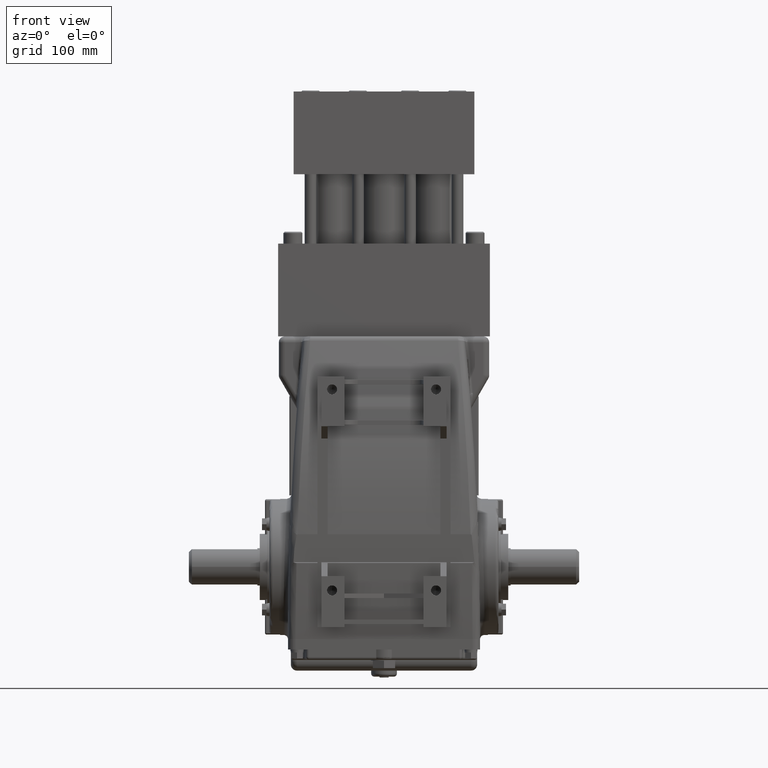
[diagram: clean part render]
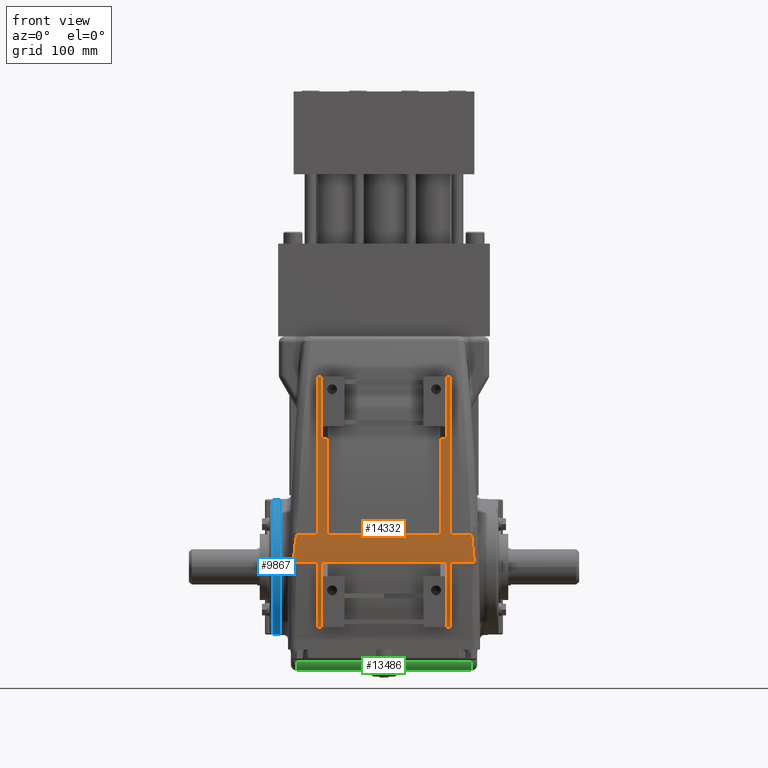
[diagram: same view with three faces highlighted in distinct colors, each labeled with its STEP entity id]
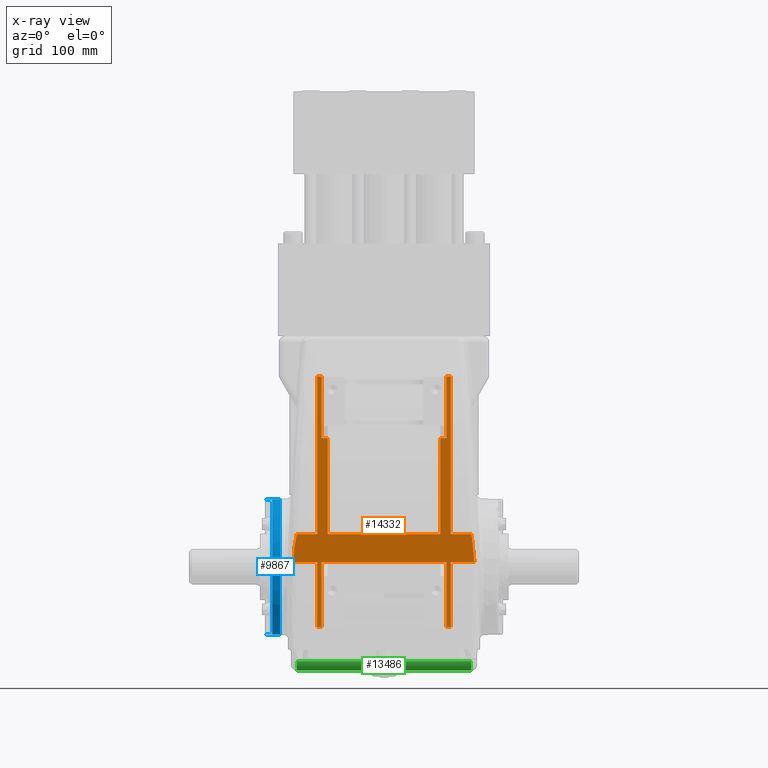
[diagram: x-ray of the same camera — body ghosted, the three highlighted faces saturated]
A machine part, front view with three faces highlighted in distinct colors.
The next image is the same camera in x-ray (body ghosted, the three faces saturated) — at least one of them is partly hidden behind the body in this view.
Their STEP definitions:

[orange] entity #14332 — the highlighted planar face has unit normal (0, -1, 0).
#1866 = DIRECTION ( 'NONE',  ( 1.000000000000000000, -0.0000000000000000000, -0.0000000000000000000 ) ) ;
#1867 = VECTOR ( 'NONE', #1866, 39.37007874015748100 ) ;
#1870 = CARTESIAN_POINT ( 'NONE',  ( -3.499999999999998700, -2.863300000000000200, 4.272365822270510100 ) ) ;
#1871 = LINE ( 'NONE', #1870, #1867 ) ;
#2048 = DIRECTION ( 'NONE',  ( -1.310238845882140600E-016, -0.0000000000000000000, 1.000000000000000000 ) ) ;
#2049 = VECTOR ( 'NONE', #2048, 39.37007874015748100 ) ;
#2050 = CARTESIAN_POINT ( 'NONE',  ( -2.085000000000000000, -2.863300000000000200, 6.330000000000000100 ) ) ;
#2051 = LINE ( 'NONE', #2050, #2049 ) ;
#2053 = CARTESIAN_POINT ( 'NONE',  ( -2.214000000000000400, -2.863299999999999300, 0.1537133837002174800 ) ) ;
#2165 = DIRECTION ( 'NONE',  ( 1.000000000000000000, -0.0000000000000000000, -0.0000000000000000000 ) ) ;
#2166 = VECTOR ( 'NONE', #2165, 39.37007874015748100 ) ;
#2168 = CARTESIAN_POINT ( 'NONE',  ( -3.499999999999998700, -2.863299999999999300, 0.1537133837002174800 ) ) ;
#2169 = LINE ( 'NONE', #2168, #2166 ) ;
#10411 = EDGE_CURVE ( 'NONE', #10797, #10446, #22726, .T. ) ;
#10446 = VERTEX_POINT ( 'NONE', #22689 ) ;
#10706 = EDGE_CURVE ( 'NONE', #10797, #12101, #24592, .T. ) ;
#10717 = VERTEX_POINT ( 'NONE', #25319 ) ;
#10730 = VERTEX_POINT ( 'NONE', #25448 ) ;
#10735 = EDGE_CURVE ( 'NONE', #10730, #10736, #25273, .T. ) ;
#10736 = VERTEX_POINT ( 'NONE', #25289 ) ;
#10797 = VERTEX_POINT ( 'NONE', #25619 ) ;
#11076 = VERTEX_POINT ( 'NONE', #26994 ) ;
#11078 = EDGE_CURVE ( 'NONE', #11080, #11076, #26859, .T. ) ;
#11080 = VERTEX_POINT ( 'NONE', #26855 ) ;
#11095 = VERTEX_POINT ( 'NONE', #26819 ) ;
#11109 = VERTEX_POINT ( 'NONE', #26760 ) ;
#11115 = EDGE_CURVE ( 'NONE', #11117, #10446, #26750, .T. ) ;
#11117 = VERTEX_POINT ( 'NONE', #26743 ) ;
#11137 = VERTEX_POINT ( 'NONE', #26727 ) ;
#11144 = EDGE_CURVE ( 'NONE', #11149, #11109, #26721, .T. ) ;
#11149 = VERTEX_POINT ( 'NONE', #26622 ) ;
#11155 = VERTEX_POINT ( 'NONE', #26611 ) ;
#11162 = EDGE_CURVE ( 'NONE', #11095, #11137, #26934, .T. ) ;
#11193 = EDGE_CURVE ( 'NONE', #11195, #11155, #26685, .T. ) ;
#11195 = VERTEX_POINT ( 'NONE', #26680 ) ;
#11229 = EDGE_CURVE ( 'NONE', #11232, #11195, #27091, .T. ) ;
#11232 = VERTEX_POINT ( 'NONE', #27167 ) ;
#11246 = EDGE_CURVE ( 'NONE', #11076, #11249, #27205, .T. ) ;
#11249 = VERTEX_POINT ( 'NONE', #27116 ) ;
#11281 = EDGE_CURVE ( 'NONE', #12091, #11282, #27149, .T. ) ;
#11282 = VERTEX_POINT ( 'NONE', #27145 ) ;
#11600 = EDGE_CURVE ( 'NONE', #11109, #11603, #28531, .T. ) ;
#11603 = VERTEX_POINT ( 'NONE', #28527 ) ;
#11647 = EDGE_CURVE ( 'NONE', #11282, #11095, #29179, .T. ) ;
#11723 = EDGE_CURVE ( 'NONE', #11603, #10736, #29808, .T. ) ;
#11781 = EDGE_CURVE ( 'NONE', #10730, #11788, #29968, .T. ) ;
#11788 = VERTEX_POINT ( 'NONE', #30566 ) ;
#11799 = EDGE_CURVE ( 'NONE', #11801, #10717, #30556, .T. ) ;
#11801 = VERTEX_POINT ( 'NONE', #30555 ) ;
#12072 = EDGE_CURVE ( 'NONE', #12091, #10717, #34753, .T. ) ;
#12091 = VERTEX_POINT ( 'NONE', #34734 ) ;
#12101 = VERTEX_POINT ( 'NONE', #33412 ) ;
#13902 = EDGE_CURVE ( 'NONE', #13930, #11080, #34585, .T. ) ;
#13930 = VERTEX_POINT ( 'NONE', #34581 ) ;
#14224 = EDGE_CURVE ( 'NONE', #14245, #11801, #34494, .T. ) ;
#14229 = ORIENTED_EDGE ( 'NONE', *, *, #11799, .T. ) ;
#14241 = ORIENTED_EDGE ( 'NONE', *, *, #24174, .F. ) ;
#14242 = ORIENTED_EDGE ( 'NONE', *, *, #10411, .F. ) ;
#14243 = ORIENTED_EDGE ( 'NONE', *, *, #11162, .T. ) ;
#14244 = ORIENTED_EDGE ( 'NONE', *, *, #10706, .T. ) ;
#14245 = VERTEX_POINT ( 'NONE', #34636 ) ;
#14247 = EDGE_CURVE ( 'NONE', #11249, #14245, #34630, .T. ) ;
#14307 = ORIENTED_EDGE ( 'NONE', *, *, #11647, .T. ) ;
#14323 = ORIENTED_EDGE ( 'NONE', *, *, #12072, .F. ) ;
#14324 = ORIENTED_EDGE ( 'NONE', *, *, #11281, .T. ) ;
#14332 = ADVANCED_FACE ( 'NONE', ( #37222 ), #37283, .T. ) ;
#14333 = EDGE_LOOP ( 'NONE', ( #14338, #14337, #14229, #14323, #14324, #14307, #14243, #14241, #21288, #14242, #14244, #27448, #27599, #27271, #27660, #27641, #27731, #27732, #27278, #27658, #27659, #27719, #27737, #27470, #27726, #27725 ) ) ;
#14337 = ORIENTED_EDGE ( 'NONE', *, *, #14224, .T. ) ;
#14338 = ORIENTED_EDGE ( 'NONE', *, *, #14247, .T. ) ;
#20242 = DIRECTION ( 'NONE',  ( -6.551194229410703100E-017, -0.0000000000000000000, -1.000000000000000000 ) ) ;
#20243 = VECTOR ( 'NONE', #20242, 39.37007874015748100 ) ;
#20244 = CARTESIAN_POINT ( 'NONE',  ( -2.214000000000000400, -2.863300000000000200, -2.009999999999999800 ) ) ;
#20245 = LINE ( 'NONE', #20244, #20243 ) ;
#20290 = CARTESIAN_POINT ( 'NONE',  ( -2.084999999999998600, -2.863299999999999300, 0.1537133837002174800 ) ) ;
#20908 = DIRECTION ( 'NONE',  ( 1.000000000000000000, -0.0000000000000000000, -0.0000000000000000000 ) ) ;
#20909 = VECTOR ( 'NONE', #20908, 39.37007874015748100 ) ;
#20910 = CARTESIAN_POINT ( 'NONE',  ( -3.499999999999998700, -2.863299999999999300, 0.1537133837002174800 ) ) ;
#20911 = LINE ( 'NONE', #20910, #20909 ) ;
#21288 = ORIENTED_EDGE ( 'NONE', *, *, #11115, .T. ) ;
#22689 = CARTESIAN_POINT ( 'NONE',  ( 1.874999999999999600, -2.863300000000000200, 1.087740777177397300 ) ) ;
#22723 = DIRECTION ( 'NONE',  ( 1.000000000000000000, 0.0000000000000000000, 0.0000000000000000000 ) ) ;
#22724 = VECTOR ( 'NONE', #22723, 39.37007874015748100 ) ;
#22725 = CARTESIAN_POINT ( 'NONE',  ( 3.193499999999999800, -2.863300000000000200, 1.087740777177397300 ) ) ;
#22726 = LINE ( 'NONE', #22725, #22724 ) ;
#24174 = EDGE_CURVE ( 'NONE', #11117, #11137, #30372, .T. ) ;
#24582 = DIRECTION ( 'NONE',  ( 2.189858111153717900E-016, -1.326573695843376000E-016, 1.000000000000000000 ) ) ;
#24585 = VECTOR ( 'NONE', #24582, 39.37007874015748100 ) ;
#24589 = CARTESIAN_POINT ( 'NONE',  ( -1.875000000000000700, -2.863299999999999300, 4.679999999999999700 ) ) ;
#24592 = LINE ( 'NONE', #24589, #24585 ) ;
#25269 = VECTOR ( 'NONE', #25290, 39.37007874015748100 ) ;
#25271 = CARTESIAN_POINT ( 'NONE',  ( 3.193499999999999800, -2.863300000000000200, 1.087740777177397300 ) ) ;
#25273 = LINE ( 'NONE', #25271, #25269 ) ;
#25289 = CARTESIAN_POINT ( 'NONE',  ( -2.214000000000000400, -2.863299999999999300, 1.087740777177527600 ) ) ;
#25290 = DIRECTION ( 'NONE',  ( 1.000000000000000000, 0.0000000000000000000, 0.0000000000000000000 ) ) ;
#25319 = CARTESIAN_POINT ( 'NONE',  ( 2.882982963062833600, -2.863300000000000200, 1.087740777177397300 ) ) ;
#25448 = CARTESIAN_POINT ( 'NONE',  ( -2.882982963062828300, -2.863299999999998800, 1.087740777177504500 ) ) ;
#25619 = CARTESIAN_POINT ( 'NONE',  ( -1.875000000000002200, -2.863300000000000200, 1.087740777177397300 ) ) ;
#26611 = CARTESIAN_POINT ( 'NONE',  ( -2.084999999999998600, -2.863300000000000200, -2.009999999999999800 ) ) ;
#26622 = CARTESIAN_POINT ( 'NONE',  ( -2.084999999999998600, -2.863300000000000200, 4.272365822270510100 ) ) ;
#26680 = CARTESIAN_POINT ( 'NONE',  ( -2.214000000000000400, -2.863300000000000200, -2.009999999999999800 ) ) ;
#26681 = DIRECTION ( 'NONE',  ( 1.000000000000000000, -0.0000000000000000000, -0.0000000000000000000 ) ) ;
#26682 = VECTOR ( 'NONE', #26681, 39.37007874015748100 ) ;
#26683 = CARTESIAN_POINT ( 'NONE',  ( -2.084999999999998600, -2.863300000000000200, -2.009999999999999800 ) ) ;
#26685 = LINE ( 'NONE', #26683, #26682 ) ;
#26716 = DIRECTION ( 'NONE',  ( -1.310238845882140600E-016, -0.0000000000000000000, 1.000000000000000000 ) ) ;
#26718 = VECTOR ( 'NONE', #26716, 39.37007874015748100 ) ;
#26720 = CARTESIAN_POINT ( 'NONE',  ( -2.085000000000000000, -2.863300000000000200, 6.330000000000000100 ) ) ;
#26721 = LINE ( 'NONE', #26720, #26718 ) ;
#26727 = CARTESIAN_POINT ( 'NONE',  ( 2.085000000000000000, -2.863300000000000200, 4.272365822270510100 ) ) ;
#26743 = CARTESIAN_POINT ( 'NONE',  ( 1.874999999999999600, -2.863300000000000200, 4.272365822270510100 ) ) ;
#26745 = DIRECTION ( 'NONE',  ( -1.094929055576858900E-016, 1.326573695843376000E-016, -1.000000000000000000 ) ) ;
#26746 = VECTOR ( 'NONE', #26745, 39.37007874015748100 ) ;
#26747 = CARTESIAN_POINT ( 'NONE',  ( 1.874999999999999600, -2.863299999999999300, 4.679999999999998800 ) ) ;
#26750 = LINE ( 'NONE', #26747, #26746 ) ;
#26760 = CARTESIAN_POINT ( 'NONE',  ( -2.085000000000000000, -2.863300000000000200, 6.330000000000000100 ) ) ;
#26819 = CARTESIAN_POINT ( 'NONE',  ( 2.085000000000000400, -2.863300000000000200, 6.330000000000000100 ) ) ;
#26855 = CARTESIAN_POINT ( 'NONE',  ( 2.085000000000001300, -2.863300000000000200, -2.009999999999999800 ) ) ;
#26856 = DIRECTION ( 'NONE',  ( 1.000000000000000000, -0.0000000000000000000, -4.235423245991225700E-015 ) ) ;
#26857 = VECTOR ( 'NONE', #26856, 39.37007874015748100 ) ;
#26858 = CARTESIAN_POINT ( 'NONE',  ( 2.213999999999997700, -2.863300000000000200, -2.010000000000000200 ) ) ;
#26859 = LINE ( 'NONE', #26858, #26857 ) ;
#26928 = DIRECTION ( 'NONE',  ( 1.310238845882140600E-016, 0.0000000000000000000, -1.000000000000000000 ) ) ;
#26930 = VECTOR ( 'NONE', #26928, 39.37007874015748100 ) ;
#26932 = CARTESIAN_POINT ( 'NONE',  ( 2.085000000000000400, -2.863300000000000200, 6.330000000000000100 ) ) ;
#26934 = LINE ( 'NONE', #26932, #26930 ) ;
#26994 = CARTESIAN_POINT ( 'NONE',  ( 2.213999999999997700, -2.863300000000000200, -2.010000000000000200 ) ) ;
#27089 = VECTOR ( 'NONE', #27168, 39.37007874015748100 ) ;
#27090 = CARTESIAN_POINT ( 'NONE',  ( -2.214000000000000400, -2.863300000000000200, -2.009999999999999800 ) ) ;
#27091 = LINE ( 'NONE', #27090, #27089 ) ;
#27116 = CARTESIAN_POINT ( 'NONE',  ( 2.213999999999998200, -2.863300000000000200, -0.9392801240350562300 ) ) ;
#27117 = DIRECTION ( 'NONE',  ( 1.310238845882140400E-016, -0.0000000000000000000, 1.000000000000000000 ) ) ;
#27145 = CARTESIAN_POINT ( 'NONE',  ( 2.213999999999998600, -2.863300000000000200, 6.330000000000000100 ) ) ;
#27146 = DIRECTION ( 'NONE',  ( 1.310238845882140400E-016, -0.0000000000000000000, 1.000000000000000000 ) ) ;
#27147 = VECTOR ( 'NONE', #27146, 39.37007874015748100 ) ;
#27148 = CARTESIAN_POINT ( 'NONE',  ( 2.213999999999998600, -2.863300000000000200, 6.330000000000000100 ) ) ;
#27149 = LINE ( 'NONE', #27148, #27147 ) ;
#27167 = CARTESIAN_POINT ( 'NONE',  ( -2.214000000000000400, -2.863300000000000200, -0.9392801240350564500 ) ) ;
#27168 = DIRECTION ( 'NONE',  ( -6.551194229410703100E-017, -0.0000000000000000000, -1.000000000000000000 ) ) ;
#27200 = VECTOR ( 'NONE', #27117, 39.37007874015748100 ) ;
#27201 = CARTESIAN_POINT ( 'NONE',  ( 2.213999999999998600, -2.863300000000000200, 6.330000000000000100 ) ) ;
#27205 = LINE ( 'NONE', #27201, #27200 ) ;
#27271 = ORIENTED_EDGE ( 'NONE', *, *, #11600, .T. ) ;
#27275 = EDGE_CURVE ( 'NONE', #27700, #11232, #20245, .T. ) ;
#27276 = VERTEX_POINT ( 'NONE', #20290 ) ;
#27278 = ORIENTED_EDGE ( 'NONE', *, *, #27275, .T. ) ;
#27448 = ORIENTED_EDGE ( 'NONE', *, *, #27597, .F. ) ;
#27469 = EDGE_CURVE ( 'NONE', #27276, #13930, #20911, .T. ) ;
#27470 = ORIENTED_EDGE ( 'NONE', *, *, #13902, .T. ) ;
#27597 = EDGE_CURVE ( 'NONE', #11149, #12101, #1871, .T. ) ;
#27599 = ORIENTED_EDGE ( 'NONE', *, *, #11144, .T. ) ;
#27641 = ORIENTED_EDGE ( 'NONE', *, *, #10735, .F. ) ;
#27658 = ORIENTED_EDGE ( 'NONE', *, *, #11229, .T. ) ;
#27659 = ORIENTED_EDGE ( 'NONE', *, *, #11193, .T. ) ;
#27660 = ORIENTED_EDGE ( 'NONE', *, *, #11723, .T. ) ;
#27700 = VERTEX_POINT ( 'NONE', #2053 ) ;
#27701 = EDGE_CURVE ( 'NONE', #11155, #27276, #2051, .T. ) ;
#27719 = ORIENTED_EDGE ( 'NONE', *, *, #27701, .T. ) ;
#27720 = EDGE_CURVE ( 'NONE', #11788, #27700, #2169, .T. ) ;
#27725 = ORIENTED_EDGE ( 'NONE', *, *, #11246, .T. ) ;
#27726 = ORIENTED_EDGE ( 'NONE', *, *, #11078, .T. ) ;
#27731 = ORIENTED_EDGE ( 'NONE', *, *, #11781, .T. ) ;
#27732 = ORIENTED_EDGE ( 'NONE', *, *, #27720, .T. ) ;
#27737 = ORIENTED_EDGE ( 'NONE', *, *, #27469, .T. ) ;
#28527 = CARTESIAN_POINT ( 'NONE',  ( -2.214000000000000000, -2.863300000000000200, 6.330000000000000100 ) ) ;
#28528 = DIRECTION ( 'NONE',  ( -1.000000000000000000, -0.0000000000000000000, -0.0000000000000000000 ) ) ;
#28529 = VECTOR ( 'NONE', #28528, 39.37007874015748100 ) ;
#28530 = CARTESIAN_POINT ( 'NONE',  ( -2.214000000000000000, -2.863300000000000200, 6.330000000000000100 ) ) ;
#28531 = LINE ( 'NONE', #28530, #28529 ) ;
#29155 = DIRECTION ( 'NONE',  ( -1.000000000000000000, -0.0000000000000000000, -0.0000000000000000000 ) ) ;
#29156 = VECTOR ( 'NONE', #29155, 39.37007874015748100 ) ;
#29157 = CARTESIAN_POINT ( 'NONE',  ( 2.085000000000000400, -2.863300000000000200, 6.330000000000000100 ) ) ;
#29179 = LINE ( 'NONE', #29157, #29156 ) ;
#29805 = DIRECTION ( 'NONE',  ( -6.551194229410703100E-017, -0.0000000000000000000, -1.000000000000000000 ) ) ;
#29806 = VECTOR ( 'NONE', #29805, 39.37007874015748100 ) ;
#29807 = CARTESIAN_POINT ( 'NONE',  ( -2.214000000000000400, -2.863300000000000200, -2.009999999999999800 ) ) ;
#29808 = LINE ( 'NONE', #29807, #29806 ) ;
#29818 = CARTESIAN_POINT ( 'NONE',  ( -3.009948465918332400, -2.863299999999999300, 0.1537133837002174800 ) ) ;
#29819 = CARTESIAN_POINT ( 'NONE',  ( -3.007354529704648900, -2.863300000000000200, 0.2330934960068406800 ) ) ;
#29820 = CARTESIAN_POINT ( 'NONE',  ( -3.003800307299397500, -2.863299999999999300, 0.3124536602986036600 ) ) ;
#29821 = CARTESIAN_POINT ( 'NONE',  ( -2.994482018731799800, -2.863299999999998800, 0.4709574541704941200 ) ) ;
#29822 = CARTESIAN_POINT ( 'NONE',  ( -2.988740873820643400, -2.863299999999998800, 0.5501085638354902300 ) ) ;
#29823 = CARTESIAN_POINT ( 'NONE',  ( -2.977767667967209200, -2.863299999999998800, 0.6686152580539163100 ) ) ;
#29824 = CARTESIAN_POINT ( 'NONE',  ( -2.973711527479033100, -2.863299999999998400, 0.7080803784157597700 ) ) ;
#29825 = CARTESIAN_POINT ( 'NONE',  ( -2.964489415108013700, -2.863299999999999300, 0.7869072394604954600 ) ) ;
#29826 = CARTESIAN_POINT ( 'NONE',  ( -2.959340922077459800, -2.863300000000000200, 0.8262706082809101500 ) ) ;
#29827 = CARTESIAN_POINT ( 'NONE',  ( -2.950247945789827000, -2.863299999999998800, 0.8851880253362215400 ) ) ;
#29828 = CARTESIAN_POINT ( 'NONE',  ( -2.946983081806391800, -2.863299999999999300, 0.9048174198889434900 ) ) ;
#29829 = CARTESIAN_POINT ( 'NONE',  ( -2.939781419432658800, -2.863299999999999300, 0.9439052373039639200 ) ) ;
#29931 = CARTESIAN_POINT ( 'NONE',  ( -2.935856016054066800, -2.863299999999999300, 0.9633741718613587600 ) ) ;
#29932 = CARTESIAN_POINT ( 'NONE',  ( -2.926832396726315900, -2.863299999999999300, 1.002041128593743400 ) ) ;
#29933 = CARTESIAN_POINT ( 'NONE',  ( -2.921836465709527300, -2.863299999999999300, 1.021262777949587800 ) ) ;
#29934 = CARTESIAN_POINT ( 'NONE',  ( -2.912013876670422400, -2.863300000000000200, 1.049557338549726500 ) ) ;
#29935 = CARTESIAN_POINT ( 'NONE',  ( -2.908404101515543500, -2.863299999999999300, 1.058860855351852600 ) ) ;
#29936 = CARTESIAN_POINT ( 'NONE',  ( -2.901428465937683700, -2.863299999999999300, 1.072060830908987200 ) ) ;
#29937 = CARTESIAN_POINT ( 'NONE',  ( -2.898818507879620000, -2.863299999999999300, 1.076410891383900300 ) ) ;
#29938 = CARTESIAN_POINT ( 'NONE',  ( -2.893945084044708500, -2.863299999999998800, 1.082135986466327400 ) ) ;
#29939 = CARTESIAN_POINT ( 'NONE',  ( -2.892132896499179900, -2.863300000000000200, 1.083934635068527100 ) ) ;
#29940 = CARTESIAN_POINT ( 'NONE',  ( -2.887957675924924100, -2.863299999999998800, 1.086744688751223800 ) ) ;
#29941 = CARTESIAN_POINT ( 'NONE',  ( -2.885540859453102200, -2.863299999999999300, 1.087740777177505600 ) ) ;
#29942 = CARTESIAN_POINT ( 'NONE',  ( -2.882982963062828300, -2.863299999999998800, 1.087740777177504500 ) ) ;
#29968 = B_SPLINE_CURVE_WITH_KNOTS ( 'NONE', 3,
 ( #29942, #29941, #29940, #29939, #29938, #29937, #29936, #29935, #29934, #29933, #29932, #29931, #29829, #29828, #29827, #29826, #29825, #29824, #29823, #29822, #29821, #29820, #29819, #29818 ),
 .UNSPECIFIED., .F., .F.,
 ( 4, 2, 2, 2, 2, 2, 2, 2, 2, 2, 2, 4 ),
 ( 0.0000000000000000000, 0.0001913830235598280700, 0.0003827660471196561500, 0.0007655320942393122900, 0.001531064188478604900, 0.003062128376957176300, 0.004593192565435748900, 0.006124256753914319700, 0.009186385130871480400, 0.01224851350782864100, 0.01837277026174296400, 0.02449702701565728600 ),
 .UNSPECIFIED. ) ;
#30323 = CARTESIAN_POINT ( 'NONE',  ( 2.882982963062833600, -2.863300000000000200, 1.087740777177397300 ) ) ;
#30324 = CARTESIAN_POINT ( 'NONE',  ( 2.885507796100179200, -2.863299999999999300, 1.087740777177445700 ) ) ;
#30369 = VECTOR ( 'NONE', #30449, 39.37007874015748100 ) ;
#30370 = CARTESIAN_POINT ( 'NONE',  ( -3.499999999999998700, -2.863300000000000200, 4.272365822270510100 ) ) ;
#30372 = LINE ( 'NONE', #30370, #30369 ) ;
#30398 = CARTESIAN_POINT ( 'NONE',  ( 2.887892977641161300, -2.863299999999999300, 1.086770855866712000 ) ) ;
#30400 = CARTESIAN_POINT ( 'NONE',  ( 2.892019453237866200, -2.863299999999999300, 1.084027628534487600 ) ) ;
#30402 = CARTESIAN_POINT ( 'NONE',  ( 2.893822041563788100, -2.863299999999999300, 1.082262226549241000 ) ) ;
#30405 = CARTESIAN_POINT ( 'NONE',  ( 2.898700148503726000, -2.863299999999999300, 1.076584567947173100 ) ) ;
#30406 = CARTESIAN_POINT ( 'NONE',  ( 2.901264774069934700, -2.863299999999999300, 1.072338622362129000 ) ) ;
#30407 = CARTESIAN_POINT ( 'NONE',  ( 2.908271470978583700, -2.863300000000000600, 1.059172708758751000 ) ) ;
#30408 = CARTESIAN_POINT ( 'NONE',  ( 2.911885568915081500, -2.863299999999999300, 1.049888962229390100 ) ) ;
#30409 = CARTESIAN_POINT ( 'NONE',  ( 2.921693998378060100, -2.863299999999999300, 1.021746841351971000 ) ) ;
#30410 = CARTESIAN_POINT ( 'NONE',  ( 2.926718278849785200, -2.863300000000000200, 1.002487773883604900 ) ) ;
#30411 = CARTESIAN_POINT ( 'NONE',  ( 2.935765755074407800, -2.863299999999999300, 0.9638023606166239400 ) ) ;
#30413 = CARTESIAN_POINT ( 'NONE',  ( 2.939699628835416700, -2.863300000000000200, 0.9443206152120829900 ) ) ;
#30415 = CARTESIAN_POINT ( 'NONE',  ( 2.946908349175491700, -2.863299999999999300, 0.9052509757540094800 ) ) ;
#30417 = CARTESIAN_POINT ( 'NONE',  ( 2.950172762960653100, -2.863299999999999300, 0.8856499330804070700 ) ) ;
#30419 = CARTESIAN_POINT ( 'NONE',  ( 2.959273727649194700, -2.863299999999999300, 0.8267555665228261100 ) ) ;
#30420 = CARTESIAN_POINT ( 'NONE',  ( 2.964433510054997400, -2.863299999999999300, 0.7873518140003793500 ) ) ;
#30421 = CARTESIAN_POINT ( 'NONE',  ( 2.973673843554477200, -2.863299999999998400, 0.7084354289188815600 ) ) ;
#30422 = CARTESIAN_POINT ( 'NONE',  ( 2.977738828981232100, -2.863300000000000200, 0.6689087730254834600 ) ) ;
#30423 = CARTESIAN_POINT ( 'NONE',  ( 2.988732282202554400, -2.863300000000000200, 0.5502370600253274600 ) ) ;
#30424 = CARTESIAN_POINT ( 'NONE',  ( 2.994477666663438500, -2.863300000000000200, 0.4710249441178591700 ) ) ;
#30449 = DIRECTION ( 'NONE',  ( 1.000000000000000000, -0.0000000000000000000, -0.0000000000000000000 ) ) ;
#30547 = CARTESIAN_POINT ( 'NONE',  ( 3.003799906963907400, -2.863299999999999300, 0.3124670052610845100 ) ) ;
#30548 = CARTESIAN_POINT ( 'NONE',  ( 3.007353671512838800, -2.863300000000000600, 0.2331197585499995800 ) ) ;
#30550 = CARTESIAN_POINT ( 'NONE',  ( 3.009948465918342600, -2.863299999999999300, 0.1537133837002174800 ) ) ;
#30555 = CARTESIAN_POINT ( 'NONE',  ( 3.009948465918342600, -2.863299999999999300, 0.1537133837002174800 ) ) ;
#30556 = B_SPLINE_CURVE_WITH_KNOTS ( 'NONE', 3,
 ( #30550, #30548, #30547, #30424, #30423, #30422, #30421, #30420, #30419, #30417, #30415, #30413, #30411, #30410, #30409, #30408, #30407, #30406, #30405, #30402, #30400, #30398, #30324, #30323 ),
 .UNSPECIFIED., .F., .F.,
 ( 4, 2, 2, 2, 2, 2, 2, 2, 2, 2, 2, 4 ),
 ( 3.469446951953614200E-018, 0.006051464954295333200, 0.01210292990859066300, 0.01512866238573833100, 0.01815439486288600000, 0.01966726110145983200, 0.02118012734003366800, 0.02269299357860750400, 0.02344942669789442200, 0.02382764325753787200, 0.02401675153735960100, 0.02420585981718132900 ),
 .UNSPECIFIED. ) ;
#30566 = CARTESIAN_POINT ( 'NONE',  ( -3.009948465918332400, -2.863299999999999300, 0.1537133837002174800 ) ) ;
#33412 = CARTESIAN_POINT ( 'NONE',  ( -1.875000000000001100, -2.863300000000000200, 4.272365822270510100 ) ) ;
#34491 = DIRECTION ( 'NONE',  ( 1.000000000000000000, -0.0000000000000000000, -0.0000000000000000000 ) ) ;
#34492 = VECTOR ( 'NONE', #34491, 39.37007874015748100 ) ;
#34493 = CARTESIAN_POINT ( 'NONE',  ( -3.499999999999998700, -2.863299999999999300, 0.1537133837002174800 ) ) ;
#34494 = LINE ( 'NONE', #34493, #34492 ) ;
#34581 = CARTESIAN_POINT ( 'NONE',  ( 2.085000000000000000, -2.863299999999999300, 0.1537133837002174800 ) ) ;
#34582 = DIRECTION ( 'NONE',  ( 1.310238845882140600E-016, 0.0000000000000000000, -1.000000000000000000 ) ) ;
#34583 = VECTOR ( 'NONE', #34582, 39.37007874015748100 ) ;
#34584 = CARTESIAN_POINT ( 'NONE',  ( 2.085000000000000400, -2.863300000000000200, 6.330000000000000100 ) ) ;
#34585 = LINE ( 'NONE', #34584, #34583 ) ;
#34627 = DIRECTION ( 'NONE',  ( 1.310238845882140400E-016, -0.0000000000000000000, 1.000000000000000000 ) ) ;
#34628 = VECTOR ( 'NONE', #34627, 39.37007874015748100 ) ;
#34629 = CARTESIAN_POINT ( 'NONE',  ( 2.213999999999998600, -2.863300000000000200, 6.330000000000000100 ) ) ;
#34630 = LINE ( 'NONE', #34629, #34628 ) ;
#34636 = CARTESIAN_POINT ( 'NONE',  ( 2.213999999999998200, -2.863300000000000200, 0.1537133837002166200 ) ) ;
#34734 = CARTESIAN_POINT ( 'NONE',  ( 2.213999999999998200, -2.863299999999999300, 1.087740777177527600 ) ) ;
#34750 = DIRECTION ( 'NONE',  ( 1.000000000000000000, 0.0000000000000000000, 0.0000000000000000000 ) ) ;
#34751 = VECTOR ( 'NONE', #34750, 39.37007874015748100 ) ;
#34752 = CARTESIAN_POINT ( 'NONE',  ( 3.193499999999999800, -2.863300000000000200, 1.087740777177397300 ) ) ;
#34753 = LINE ( 'NONE', #34752, #34751 ) ;
#37222 = FACE_OUTER_BOUND ( 'NONE', #14333, .T. ) ;
#37279 = DIRECTION ( 'NONE',  ( 0.0000000000000000000, 0.0000000000000000000, -1.000000000000000000 ) ) ;
#37280 = DIRECTION ( 'NONE',  ( 0.0000000000000000000, -1.000000000000000000, 0.0000000000000000000 ) ) ;
#37281 = CARTESIAN_POINT ( 'NONE',  ( 2.213999999999998600, -2.863300000000000200, 6.330000000000000100 ) ) ;
#37282 = AXIS2_PLACEMENT_3D ( 'NONE', #37281, #37280, #37279 ) ;
#37283 = PLANE ( 'NONE',  #37282 ) ;

[blue] entity #9867 — the highlighted cylindrical surface (partial cylindrical patch) has radius 57.15 mm, axis along (1, 0, 0).
#7428 = CARTESIAN_POINT ( 'NONE',  ( -3.910000000000000100, 0.0000000000000000000, -2.250000000000000400 ) ) ;
#7438 = DIRECTION ( 'NONE',  ( 1.000000000000000000, -0.0000000000000000000, -0.0000000000000000000 ) ) ;
#7439 = VECTOR ( 'NONE', #7438, 39.37007874015748100 ) ;
#7440 = CARTESIAN_POINT ( 'NONE',  ( -4.134999999999999800, 2.755364296100349300E-016, 2.250000000000000400 ) ) ;
#7441 = LINE ( 'NONE', #7440, #7439 ) ;
#7786 = CARTESIAN_POINT ( 'NONE',  ( -3.455000000000000100, 2.755364296100349300E-016, 2.250000000000000400 ) ) ;
#7798 = CARTESIAN_POINT ( 'NONE',  ( -3.455000000000000100, 0.0000000000000000000, -2.250000000000000400 ) ) ;
#8238 = EDGE_CURVE ( 'NONE', #18460, #8387, #7441, .T. ) ;
#8241 = VERTEX_POINT ( 'NONE', #7428 ) ;
#8334 = DIRECTION ( 'NONE',  ( 1.000000000000000000, -0.0000000000000000000, -0.0000000000000000000 ) ) ;
#8335 = VECTOR ( 'NONE', #8334, 39.37007874015748100 ) ;
#8337 = CARTESIAN_POINT ( 'NONE',  ( -4.134999999999999800, 0.0000000000000000000, -2.250000000000000400 ) ) ;
#8339 = LINE ( 'NONE', #8337, #8335 ) ;
#8383 = VERTEX_POINT ( 'NONE', #7798 ) ;
#8387 = VERTEX_POINT ( 'NONE', #7786 ) ;
#8450 = EDGE_CURVE ( 'NONE', #8241, #8383, #8339, .T. ) ;
#9602 = EDGE_CURVE ( 'NONE', #9868, #9603, #13221, .T. ) ;
#9603 = VERTEX_POINT ( 'NONE', #13216 ) ;
#9604 = ORIENTED_EDGE ( 'NONE', *, *, #9605, .T. ) ;
#9605 = EDGE_CURVE ( 'NONE', #9603, #9852, #13215, .T. ) ;
#9852 = VERTEX_POINT ( 'NONE', #15516 ) ;
#9867 = ADVANCED_FACE ( 'NONE', ( #15664 ), #15565, .T. ) ;
#9868 = VERTEX_POINT ( 'NONE', #15671 ) ;
#9870 = ORIENTED_EDGE ( 'NONE', *, *, #9602, .T. ) ;
#9879 = ORIENTED_EDGE ( 'NONE', *, *, #18459, .T. ) ;
#9880 = ORIENTED_EDGE ( 'NONE', *, *, #9881, .T. ) ;
#9881 = EDGE_CURVE ( 'NONE', #18181, #9868, #15663, .T. ) ;
#9882 = EDGE_CURVE ( 'NONE', #8387, #8383, #15658, .T. ) ;
#9884 = ORIENTED_EDGE ( 'NONE', *, *, #9882, .F. ) ;
#9891 = ORIENTED_EDGE ( 'NONE', *, *, #8238, .F. ) ;
#9892 = ORIENTED_EDGE ( 'NONE', *, *, #8450, .T. ) ;
#9893 = EDGE_LOOP ( 'NONE', ( #9891, #9879, #9880, #9870, #9604, #9915, #9892, #9884 ) ) ;
#9899 = EDGE_CURVE ( 'NONE', #9852, #8241, #15675, .T. ) ;
#9915 = ORIENTED_EDGE ( 'NONE', *, *, #9899, .T. ) ;
#13212 = DIRECTION ( 'NONE',  ( -1.000000000000000000, 0.0000000000000000000, 0.0000000000000000000 ) ) ;
#13213 = VECTOR ( 'NONE', #13212, 39.37007874015748100 ) ;
#13214 = CARTESIAN_POINT ( 'NONE',  ( -4.134999999999999800, -0.1534090909090911900, -2.244764052373088500 ) ) ;
#13215 = LINE ( 'NONE', #13214, #13213 ) ;
#13216 = CARTESIAN_POINT ( 'NONE',  ( -3.710000000000000000, -0.1534090909090911600, -2.244764052373088100 ) ) ;
#13217 = DIRECTION ( 'NONE',  ( 0.0000000000000000000, 0.0000000000000000000, 1.000000000000000000 ) ) ;
#13218 = DIRECTION ( 'NONE',  ( 1.000000000000000000, -0.0000000000000000000, -0.0000000000000000000 ) ) ;
#13219 = CARTESIAN_POINT ( 'NONE',  ( -3.710000000000000000, 0.0000000000000000000, 0.0000000000000000000 ) ) ;
#13220 = AXIS2_PLACEMENT_3D ( 'NONE', #13219, #13218, #13217 ) ;
#13221 = CIRCLE ( 'NONE', #13220, 2.250000000000000400 ) ;
#15516 = CARTESIAN_POINT ( 'NONE',  ( -3.910000000000000100, -0.1534090909090911600, -2.244764052373088100 ) ) ;
#15565 = CYLINDRICAL_SURFACE ( 'NONE', #15670, 2.250000000000000400 ) ;
#15656 = CARTESIAN_POINT ( 'NONE',  ( -3.455000000000000100, 0.0000000000000000000, 0.0000000000000000000 ) ) ;
#15657 = AXIS2_PLACEMENT_3D ( 'NONE', #15656, #15682, #15681 ) ;
#15658 = CIRCLE ( 'NONE', #15657, 2.250000000000000400 ) ;
#15660 = DIRECTION ( 'NONE',  ( 1.000000000000000000, -0.0000000000000000000, -0.0000000000000000000 ) ) ;
#15661 = VECTOR ( 'NONE', #15660, 39.37007874015748100 ) ;
#15662 = CARTESIAN_POINT ( 'NONE',  ( -4.134999999999999800, -0.1534090909090911900, 2.244764052373088500 ) ) ;
#15663 = LINE ( 'NONE', #15662, #15661 ) ;
#15664 = FACE_OUTER_BOUND ( 'NONE', #9893, .T. ) ;
#15667 = DIRECTION ( 'NONE',  ( 0.0000000000000000000, 0.0000000000000000000, -1.000000000000000000 ) ) ;
#15668 = DIRECTION ( 'NONE',  ( 1.000000000000000000, -0.0000000000000000000, -0.0000000000000000000 ) ) ;
#15669 = CARTESIAN_POINT ( 'NONE',  ( -4.134999999999999800, 0.0000000000000000000, 0.0000000000000000000 ) ) ;
#15670 = AXIS2_PLACEMENT_3D ( 'NONE', #15669, #15668, #15667 ) ;
#15671 = CARTESIAN_POINT ( 'NONE',  ( -3.710000000000000000, -0.1534090909090911600, 2.244764052373088100 ) ) ;
#15674 = AXIS2_PLACEMENT_3D ( 'NONE', #15680, #15693, #15692 ) ;
#15675 = CIRCLE ( 'NONE', #15674, 2.250000000000000400 ) ;
#15680 = CARTESIAN_POINT ( 'NONE',  ( -3.910000000000000100, 0.0000000000000000000, 0.0000000000000000000 ) ) ;
#15681 = DIRECTION ( 'NONE',  ( 0.0000000000000000000, 0.0000000000000000000, -1.000000000000000000 ) ) ;
#15682 = DIRECTION ( 'NONE',  ( 1.000000000000000000, -0.0000000000000000000, -0.0000000000000000000 ) ) ;
#15692 = DIRECTION ( 'NONE',  ( 0.0000000000000000000, 2.042810365310288000E-014, 1.000000000000000000 ) ) ;
#15693 = DIRECTION ( 'NONE',  ( 1.000000000000000000, -0.0000000000000000000, -0.0000000000000000000 ) ) ;
#18181 = VERTEX_POINT ( 'NONE', #37529 ) ;
#18459 = EDGE_CURVE ( 'NONE', #18460, #18181, #37924, .T. ) ;
#18460 = VERTEX_POINT ( 'NONE', #38019 ) ;
#37529 = CARTESIAN_POINT ( 'NONE',  ( -3.910000000000000100, -0.1534090909090911600, 2.244764052373088100 ) ) ;
#37923 = AXIS2_PLACEMENT_3D ( 'NONE', #38022, #38021, #38020 ) ;
#37924 = CIRCLE ( 'NONE', #37923, 2.250000000000000400 ) ;
#38019 = CARTESIAN_POINT ( 'NONE',  ( -3.910000000000000100, 2.755364296100349300E-016, 2.250000000000000400 ) ) ;
#38020 = DIRECTION ( 'NONE',  ( 0.0000000000000000000, 0.0000000000000000000, 1.000000000000000000 ) ) ;
#38021 = DIRECTION ( 'NONE',  ( 1.000000000000000000, -0.0000000000000000000, -0.0000000000000000000 ) ) ;
#38022 = CARTESIAN_POINT ( 'NONE',  ( -3.910000000000000100, 0.0000000000000000000, 0.0000000000000000000 ) ) ;

[green] entity #13486 — the highlighted cylindrical surface (edge-blend (fillet) strip) has radius 7.62 mm, axis along (-1, -0, -0).
#10471 = EDGE_CURVE ( 'NONE', #10472, #10473, #22812, .T. ) ;
#10472 = VERTEX_POINT ( 'NONE', #22807 ) ;
#10473 = VERTEX_POINT ( 'NONE', #22806 ) ;
#10536 = VERTEX_POINT ( 'NONE', #23542 ) ;
#10539 = EDGE_CURVE ( 'NONE', #10541, #10536, #23504, .T. ) ;
#10541 = VERTEX_POINT ( 'NONE', #23499 ) ;
#13386 = VERTEX_POINT ( 'NONE', #34113 ) ;
#13442 = VERTEX_POINT ( 'NONE', #34304 ) ;
#13448 = ORIENTED_EDGE ( 'NONE', *, *, #10471, .T. ) ;
#13486 = ADVANCED_FACE ( 'NONE', ( #34261 ), #34273, .T. ) ;
#13487 = ORIENTED_EDGE ( 'NONE', *, *, #13541, .T. ) ;
#13497 = EDGE_CURVE ( 'NONE', #13386, #13442, #34268, .T. ) ;
#13527 = ORIENTED_EDGE ( 'NONE', *, *, #13550, .T. ) ;
#13541 = EDGE_CURVE ( 'NONE', #10536, #13386, #34286, .T. ) ;
#13550 = EDGE_CURVE ( 'NONE', #13442, #10472, #34281, .T. ) ;
#13572 = ORIENTED_EDGE ( 'NONE', *, *, #13575, .F. ) ;
#13575 = EDGE_CURVE ( 'NONE', #10541, #10473, #34364, .T. ) ;
#13577 = ORIENTED_EDGE ( 'NONE', *, *, #10539, .T. ) ;
#13597 = ORIENTED_EDGE ( 'NONE', *, *, #13497, .T. ) ;
#13617 = EDGE_LOOP ( 'NONE', ( #13572, #13577, #13487, #13597, #13527, #13448 ) ) ;
#22806 = CARTESIAN_POINT ( 'NONE',  ( -2.900000000000000400, -1.274896647000307400, -3.448947857774851100 ) ) ;
#22807 = CARTESIAN_POINT ( 'NONE',  ( -2.900000000000000400, -1.300000000000000000, -3.449999999999999700 ) ) ;
#22808 = DIRECTION ( 'NONE',  ( 0.0000000000000000000, 0.0000000000000000000, 1.000000000000000000 ) ) ;
#22809 = DIRECTION ( 'NONE',  ( 1.000000000000000000, 0.0000000000000000000, -0.0000000000000000000 ) ) ;
#22810 = CARTESIAN_POINT ( 'NONE',  ( -2.900000000000000400, -1.300000000000000000, -3.149999999999999500 ) ) ;
#22811 = AXIS2_PLACEMENT_3D ( 'NONE', #22810, #22809, #22808 ) ;
#22812 = CIRCLE ( 'NONE', #22811, 0.3000000000000001000 ) ;
#23499 = CARTESIAN_POINT ( 'NONE',  ( 2.900000000000000400, -1.274896647000307400, -3.448947857774851100 ) ) ;
#23500 = DIRECTION ( 'NONE',  ( 0.0000000000000000000, 0.0000000000000000000, 1.000000000000000000 ) ) ;
#23501 = DIRECTION ( 'NONE',  ( -1.000000000000000000, -0.0000000000000000000, 0.0000000000000000000 ) ) ;
#23502 = CARTESIAN_POINT ( 'NONE',  ( 2.900000000000000400, -1.300000000000000000, -3.149999999999999500 ) ) ;
#23503 = AXIS2_PLACEMENT_3D ( 'NONE', #23502, #23501, #23500 ) ;
#23504 = CIRCLE ( 'NONE', #23503, 0.3000000000000001000 ) ;
#23542 = CARTESIAN_POINT ( 'NONE',  ( 2.900000000000000400, -1.300000000000000000, -3.449999999999999700 ) ) ;
#34113 = CARTESIAN_POINT ( 'NONE',  ( 2.900000000000000400, -1.599999999999999900, -3.149999999999999500 ) ) ;
#34261 = FACE_OUTER_BOUND ( 'NONE', #13617, .T. ) ;
#34265 = DIRECTION ( 'NONE',  ( -1.000000000000000000, -0.0000000000000000000, -0.0000000000000000000 ) ) ;
#34266 = VECTOR ( 'NONE', #34265, 39.37007874015748100 ) ;
#34267 = CARTESIAN_POINT ( 'NONE',  ( 3.100000000000000100, -1.599999999999999900, -3.149999999999999500 ) ) ;
#34268 = LINE ( 'NONE', #34267, #34266 ) ;
#34269 = DIRECTION ( 'NONE',  ( 0.0000000000000000000, 0.0000000000000000000, 1.000000000000000000 ) ) ;
#34270 = DIRECTION ( 'NONE',  ( -1.000000000000000000, -0.0000000000000000000, -0.0000000000000000000 ) ) ;
#34271 = CARTESIAN_POINT ( 'NONE',  ( 3.100000000000000100, -1.300000000000000000, -3.149999999999999500 ) ) ;
#34272 = AXIS2_PLACEMENT_3D ( 'NONE', #34271, #34270, #34269 ) ;
#34273 = CYLINDRICAL_SURFACE ( 'NONE', #34272, 0.3000000000000001000 ) ;
#34277 = DIRECTION ( 'NONE',  ( 0.0000000000000000000, 0.0000000000000000000, 1.000000000000000000 ) ) ;
#34278 = DIRECTION ( 'NONE',  ( 1.000000000000000000, 0.0000000000000000000, -0.0000000000000000000 ) ) ;
#34279 = CARTESIAN_POINT ( 'NONE',  ( -2.900000000000000400, -1.300000000000000000, -3.149999999999999500 ) ) ;
#34280 = AXIS2_PLACEMENT_3D ( 'NONE', #34279, #34278, #34277 ) ;
#34281 = CIRCLE ( 'NONE', #34280, 0.3000000000000001000 ) ;
#34282 = DIRECTION ( 'NONE',  ( 0.0000000000000000000, 0.0000000000000000000, 1.000000000000000000 ) ) ;
#34283 = DIRECTION ( 'NONE',  ( -1.000000000000000000, -0.0000000000000000000, 0.0000000000000000000 ) ) ;
#34284 = CARTESIAN_POINT ( 'NONE',  ( 2.900000000000000400, -1.300000000000000000, -3.149999999999999500 ) ) ;
#34285 = AXIS2_PLACEMENT_3D ( 'NONE', #34284, #34283, #34282 ) ;
#34286 = CIRCLE ( 'NONE', #34285, 0.3000000000000001000 ) ;
#34304 = CARTESIAN_POINT ( 'NONE',  ( -2.900000000000000400, -1.599999999999999900, -3.149999999999999500 ) ) ;
#34361 = DIRECTION ( 'NONE',  ( -1.000000000000000000, -0.0000000000000000000, -0.0000000000000000000 ) ) ;
#34362 = VECTOR ( 'NONE', #34361, 39.37007874015748100 ) ;
#34363 = CARTESIAN_POINT ( 'NONE',  ( 3.100000000000000100, -1.274896647000307400, -3.448947857774851100 ) ) ;
#34364 = LINE ( 'NONE', #34363, #34362 ) ;